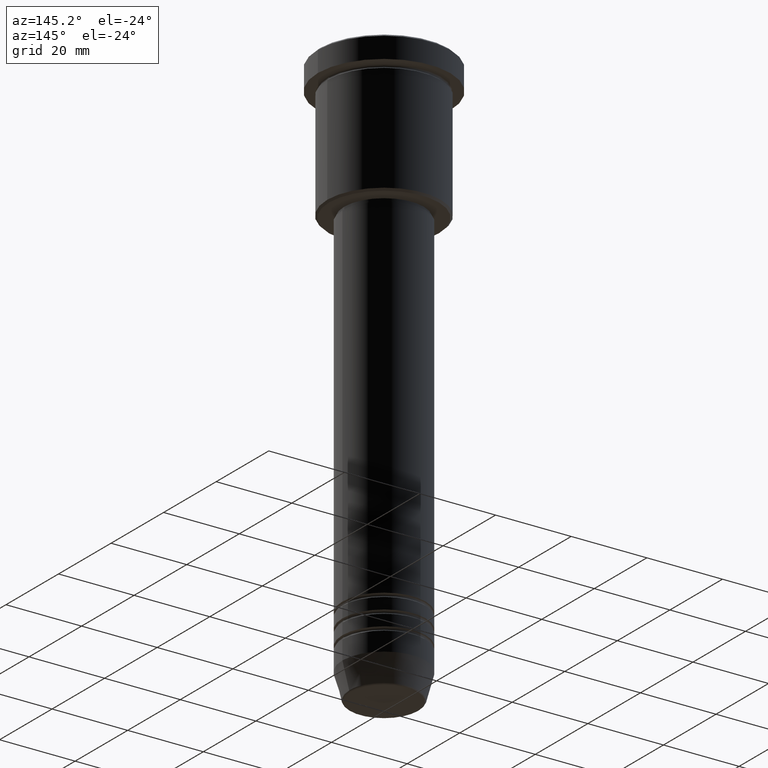
[diagram: clean part render]
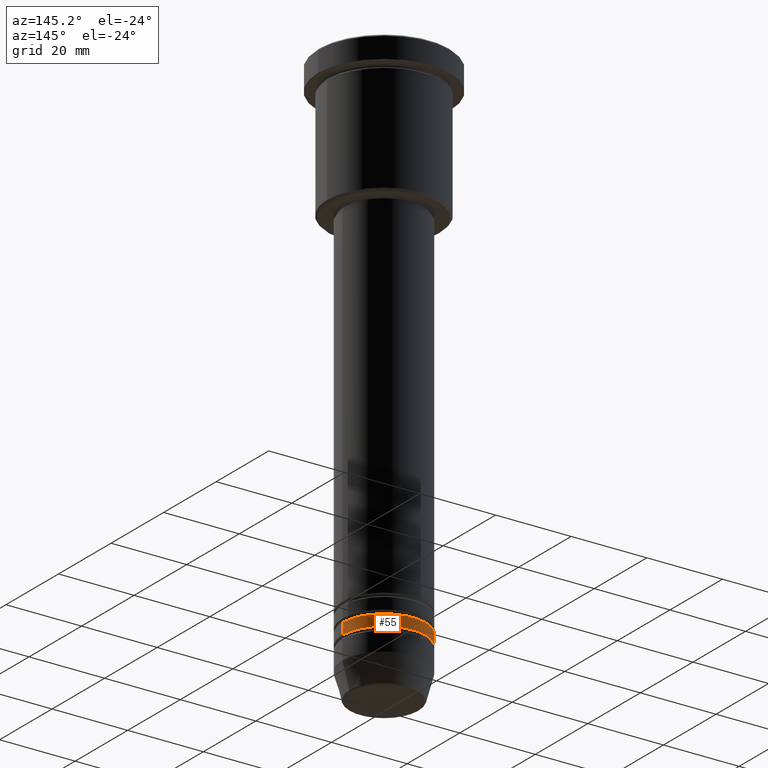
[diagram: same view with one face highlighted and labeled with its STEP entity id]
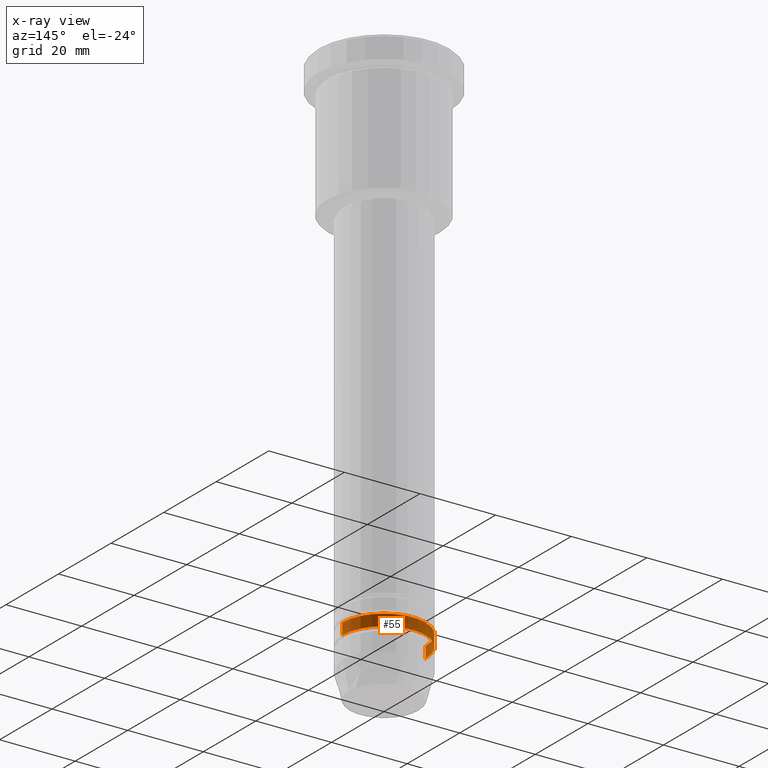
[diagram: x-ray of the same camera — body ghosted, the highlighted face saturated]
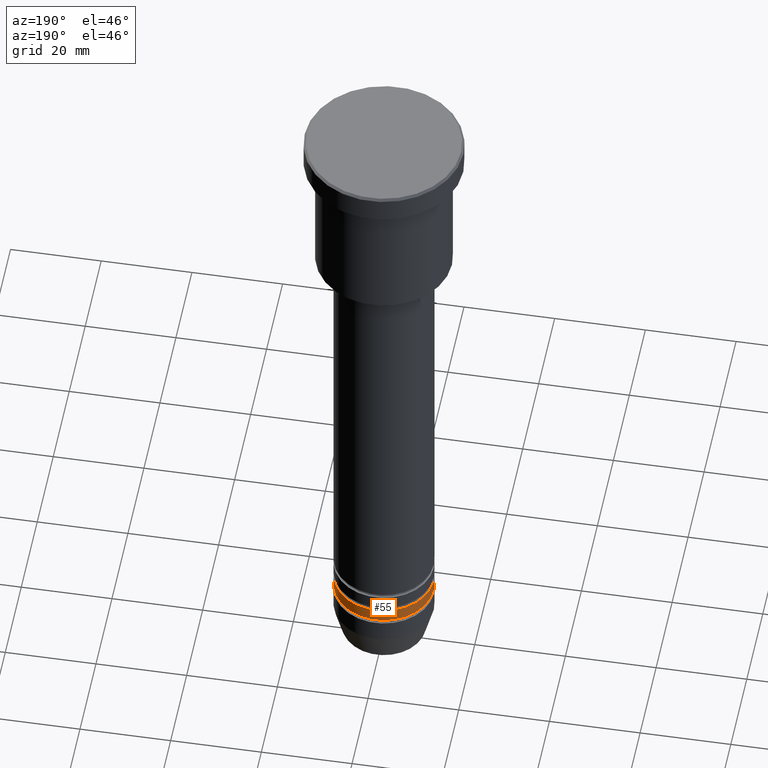
[diagram: same view with one face highlighted and labeled with its STEP entity id]
A machine part, auxiliary view. The second image highlights one B-rep face of the part: STEP entity #55.
The next image is the same camera in x-ray: the body ghosted, the highlighted face saturated — about 0% of this face is hidden behind the body in this view.
A second angle (auxiliary view) of the same face is appended — the face is thin or edge-on in the first view.
In plain terms, the highlighted cylindrical surface (partial cylindrical patch) has radius 11 mm, axis along (-0, -0, 1).
Its self-contained STEP definition (entity closure, byte-faithful):
#25 = DIRECTION ( 'NONE',  ( 1.000000000000000000, 0.000000000000000000, 0.000000000000000000 ) ) ;
#27 = LINE ( 'NONE', #642, #101 ) ;
#55 = ADVANCED_FACE ( 'NONE', ( #1166 ), #1171, .T. ) ;
#101 = VECTOR ( 'NONE', #376, 1000.000000000000000 ) ;
#104 = DIRECTION ( 'NONE',  ( 1.000000000000000000, 0.000000000000000000, 0.000000000000000000 ) ) ;
#133 = EDGE_CURVE ( 'NONE', #551, #752, #1057, .T. ) ;
#162 = DIRECTION ( 'NONE',  ( -0.000000000000000000, -0.000000000000000000, 1.000000000000000000 ) ) ;
#169 = CARTESIAN_POINT ( 'NONE',  ( 11.00000000000000000, 0.000000000000000000, -134.9999999999998863 ) ) ;
#183 = AXIS2_PLACEMENT_3D ( 'NONE', #644, #566, #25 ) ;
#186 = EDGE_CURVE ( 'NONE', #643, #752, #334, .T. ) ;
#214 = CARTESIAN_POINT ( 'NONE',  ( 0.000000000000000000, 0.000000000000000000, -134.9999999999998863 ) ) ;
#243 = EDGE_CURVE ( 'NONE', #1089, #643, #27, .T. ) ;
#244 = CARTESIAN_POINT ( 'NONE',  ( 0.000000000000000000, 0.000000000000000000, 0.000000000000000000 ) ) ;
#334 = CIRCLE ( 'NONE', #617, 11.00000000000000000 ) ;
#339 = CARTESIAN_POINT ( 'NONE',  ( -11.00000000000000000, 1.347111479062088405E-15, -137.9999999999998863 ) ) ;
#376 = DIRECTION ( 'NONE',  ( -0.000000000000000000, -0.000000000000000000, 1.000000000000000000 ) ) ;
#380 = DIRECTION ( 'NONE',  ( -0.000000000000000000, -0.000000000000000000, 1.000000000000000000 ) ) ;
#412 = ORIENTED_EDGE ( 'NONE', *, *, #133, .T. ) ;
#422 = VECTOR ( 'NONE', #162, 1000.000000000000000 ) ;
#443 = EDGE_LOOP ( 'NONE', ( #994, #412, #540, #877 ) ) ;
#452 = DIRECTION ( 'NONE',  ( 1.000000000000000000, 0.000000000000000000, 0.000000000000000000 ) ) ;
#540 = ORIENTED_EDGE ( 'NONE', *, *, #186, .F. ) ;
#551 = VERTEX_POINT ( 'NONE', #339 ) ;
#566 = DIRECTION ( 'NONE',  ( -0.000000000000000000, -0.000000000000000000, 1.000000000000000000 ) ) ;
#584 = CARTESIAN_POINT ( 'NONE',  ( -11.00000000000000000, 1.347111479062088405E-15, 0.000000000000000000 ) ) ;
#617 = AXIS2_PLACEMENT_3D ( 'NONE', #214, #380, #104 ) ;
#632 = DIRECTION ( 'NONE',  ( -0.000000000000000000, -0.000000000000000000, 1.000000000000000000 ) ) ;
#642 = CARTESIAN_POINT ( 'NONE',  ( 11.00000000000000000, 0.000000000000000000, 0.000000000000000000 ) ) ;
#643 = VERTEX_POINT ( 'NONE', #169 ) ;
#644 = CARTESIAN_POINT ( 'NONE',  ( 0.000000000000000000, 0.000000000000000000, -137.9999999999998863 ) ) ;
#691 = EDGE_CURVE ( 'NONE', #1089, #551, #1176, .T. ) ;
#701 = AXIS2_PLACEMENT_3D ( 'NONE', #244, #632, #452 ) ;
#752 = VERTEX_POINT ( 'NONE', #1026 ) ;
#877 = ORIENTED_EDGE ( 'NONE', *, *, #243, .F. ) ;
#994 = ORIENTED_EDGE ( 'NONE', *, *, #691, .T. ) ;
#1026 = CARTESIAN_POINT ( 'NONE',  ( -11.00000000000000000, 1.347111479062088405E-15, -134.9999999999998863 ) ) ;
#1057 = LINE ( 'NONE', #584, #422 ) ;
#1089 = VERTEX_POINT ( 'NONE', #1128 ) ;
#1128 = CARTESIAN_POINT ( 'NONE',  ( 11.00000000000000000, 0.000000000000000000, -137.9999999999998863 ) ) ;
#1166 = FACE_OUTER_BOUND ( 'NONE', #443, .T. ) ;
#1171 = CYLINDRICAL_SURFACE ( 'NONE', #701, 11.00000000000000000 ) ;
#1176 = CIRCLE ( 'NONE', #183, 11.00000000000000000 ) ;